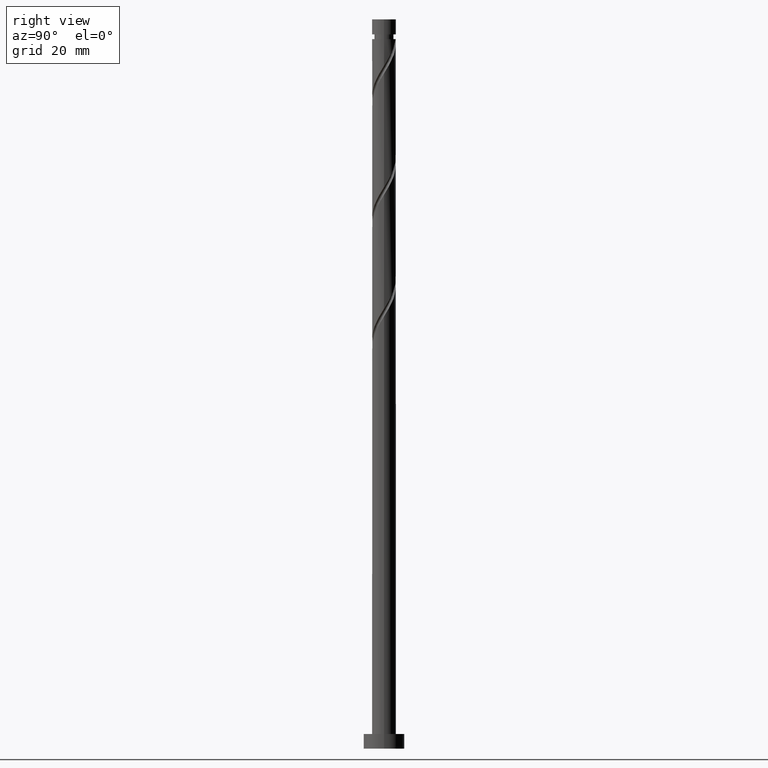
[diagram: clean part render]
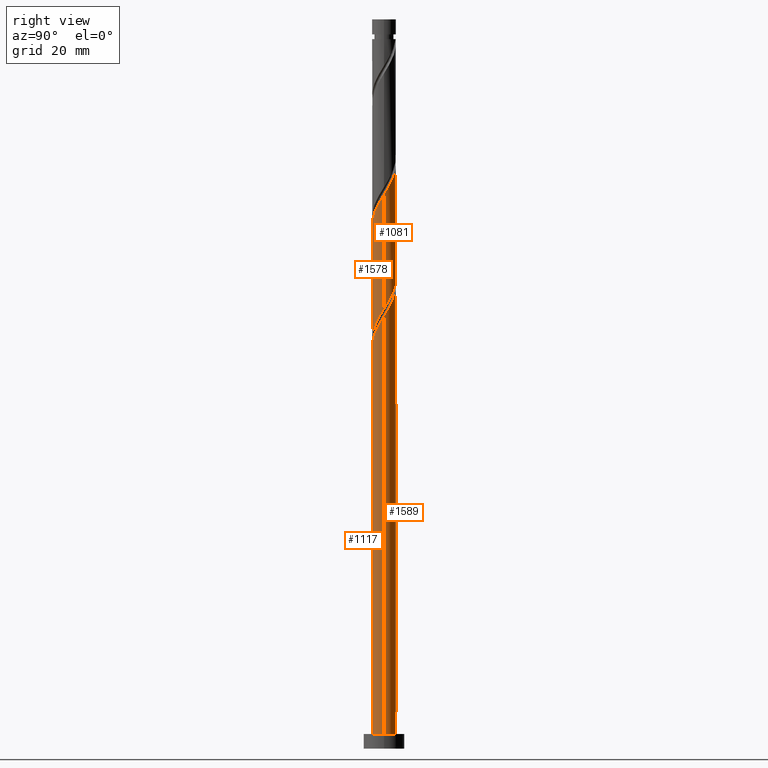
[diagram: same view with one multi-face feature highlighted, each face labeled with its STEP entity id]
A machine part, right view. The highlighted faces form ONE feature: a constant-radius fillet chain: 4 tangent blend faces with common blend radius 4.1 mm. The faces share edges in the B-rep.
Their STEP definitions:
[1] entity #1081 (Cylinder):
#12 = CARTESIAN_POINT ( 'NONE',  ( 3.201945248320214432, 2.608712607072973810, 194.3688165721283099 ) ) ;
#20 = CARTESIAN_POINT ( 'NONE',  ( 3.467576788759973550, 2.187672556406262458, 193.5675345208461522 ) ) ;
#30 = CARTESIAN_POINT ( 'NONE',  ( -2.484596748205738503, 3.299183813967827561, 165.5226627259744134 ) ) ;
#40 = CARTESIAN_POINT ( 'NONE',  ( -3.770227348058453387, 1.611020094211170983, 207.9906114439231146 ) ) ;
#41 = EDGE_LOOP ( 'NONE', ( #899, #1394, #179, #463 ) ) ;
#50 = CARTESIAN_POINT ( 'NONE',  ( 3.733208329199736664, 1.766632505739547110, 192.7662524695641650 ) ) ;
#59 = CYLINDRICAL_SURFACE ( 'NONE', #725, 4.099999999999999645 ) ;
#62 = CARTESIAN_POINT ( 'NONE',  ( 2.589692155012810915, 3.178599462383565388, 156.7085601618718442 ) ) ;
#90 = FACE_OUTER_BOUND ( 'NONE', #41, .T. ) ;
#94 = DIRECTION ( 'NONE',  ( -0.000000000000000000, -0.000000000000000000, -1.000000000000000000 ) ) ;
#163 = CARTESIAN_POINT ( 'NONE',  ( 4.047510911646318377, 0.8218821446204189751, 191.1636883670000771 ) ) ;
#173 = CARTESIAN_POINT ( 'NONE',  ( -4.100000000000004974, -4.217574666386827299E-15, 210.6690998244415312 ) ) ;
#179 = ORIENTED_EDGE ( 'NONE', *, *, #772, .F. ) ;
#183 = CARTESIAN_POINT ( 'NONE',  ( -2.053724632216503920, 3.548551131803961312, 164.7213806746923694 ) ) ;
#191 = CARTESIAN_POINT ( 'NONE',  ( -4.099999999999999645, 0.1630698343807522877, 171.3941059939256490 ) ) ;
#200 = CARTESIAN_POINT ( 'NONE',  ( 0.8158896984274309760, 4.017999999999998906, 159.9136883670000486 ) ) ;
#211 = CARTESIAN_POINT ( 'NONE',  ( -4.099999999999999645, -7.582660836376372050E-15, 171.6582769095586229 ) ) ;
#219 = CARTESIAN_POINT ( 'NONE',  ( 3.275129049406524828, 2.466481240499002414, 155.1059960593077562 ) ) ;
#234 = DIRECTION ( 'NONE',  ( -1.000000000000000000, 0.000000000000000000, 0.000000000000000000 ) ) ;
#238 = CARTESIAN_POINT ( 'NONE',  ( 2.203740304420988227, 3.493045019780353311, 157.5098422131538882 ) ) ;
#246 =( BOUNDED_CURVE ( )  B_SPLINE_CURVE ( 2, ( #1177, #191, #720, #1728, #316, #1573, #856, #1026, #890, #30, #183, #1461, #1312, #1188, #1747, #494, #200, #1222, #954, #238, #62, #1215, #219, #1372, #771, #1335, #912, #1785, #373 ),
 .UNSPECIFIED., .F., .T. ) 
 B_SPLINE_CURVE_WITH_KNOTS ( ( 3, 2, 2, 2, 2, 2, 2, 2, 2, 2, 2, 2, 2, 2, 3 ),
 ( 0.6795271625973833274, 0.6826923076923077094, 0.6923076923076922906, 0.7019230769230768718, 0.7115384615384615641, 0.7211538461538461453, 0.7307692307692307265, 0.7403846153846154188, 0.7500000000000000000, 0.7596153846153845812, 0.7692307692307692735, 0.7788461538461538547, 0.7884615384615384359, 0.7980769230769231282, 0.8045271625973831053 ),
 .UNSPECIFIED. ) 
 CURVE ( )  GEOMETRIC_REPRESENTATION_ITEM ( )  RATIONAL_B_SPLINE_CURVE ( ( 0.9061636035682806289, 0.9069090390690692782, 0.9090909090909258250, 0.9024626128164292549, 0.9090909090909258250, 0.9024626128164292549, 0.9090909090909258250, 0.9024626128164292549, 0.9090909090909258250, 0.9024626128164292549, 0.9090909090909258250, 0.9024626128164292549, 0.9090909090909258250, 0.9024626128164292549, 0.9090909090909258250, 0.9024626128164292549, 0.9090909090909258250, 0.9024626128164292549, 0.9090909090909258250, 0.9024626128164292549, 0.9090909090909258250, 0.9024626128164292549, 0.9090909090909258250, 0.9024626128164292549, 0.9090909090909258250, 0.9024626128164292549, 0.9090909090909258250, 0.9046444828382860237, 0.9061636035682805179 ) ) 
 REPRESENTATION_ITEM ( '' )  );
#289 = CARTESIAN_POINT ( 'NONE',  ( -4.046213737460028881, 0.6619323158675581853, 209.5931755464872595 ) ) ;
#298 = CARTESIAN_POINT ( 'NONE',  ( -1.303763227014474557, 3.918933054726334131, 202.3816370849487498 ) ) ;
#316 = CARTESIAN_POINT ( 'NONE',  ( -3.890359620423019749, 1.294257325179983376, 169.5290729823847187 ) ) ;
#325 = CARTESIAN_POINT ( 'NONE',  ( -4.100000000000010303, 0.3331513980018577792, 210.1293990870932475 ) ) ;
#373 = CARTESIAN_POINT ( 'NONE',  ( 4.099999999999999645, 5.907595720648257465E-15, 150.8249435762253086 ) ) ;
#375 = EDGE_CURVE ( 'NONE', #472, #1430, #1095, .T. ) ;
#455 = CARTESIAN_POINT ( 'NONE',  ( 1.144823255530918127, 3.936925159765629623, 198.3752268285385014 ) ) ;
#463 = ORIENTED_EDGE ( 'NONE', *, *, #1811, .F. ) ;
#472 = VERTEX_POINT ( 'NONE', #1679 ) ;
#476 = CARTESIAN_POINT ( 'NONE',  ( -3.965840602908485835, 1.153231612411109497, 208.7918934952051870 ) ) ;
#494 = CARTESIAN_POINT ( 'NONE',  ( 0.3280161698403873394, 4.117066945273671230, 160.7149704182821779 ) ) ;
#551 = VERTEX_POINT ( 'NONE', #1114 ) ;
#570 = CARTESIAN_POINT ( 'NONE',  ( 2.843270998262978466, 2.953948210520402906, 195.1700986234102686 ) ) ;
#589 = CARTESIAN_POINT ( 'NONE',  ( -3.574614093208420051, 2.068808576011232248, 207.1893293926411275 ) ) ;
#606 =( BOUNDED_CURVE ( )  B_SPLINE_CURVE ( 2, ( #1199, #1049, #1447, #163, #1288, #50, #20, #12, #570, #1739, #901, #1302, #455, #1019, #1154, #1757, #751, #298, #1717, #1037, #1613, #1602, #1592, #589, #40, #476, #289, #325, #173 ),
 .UNSPECIFIED., .F., .T. ) 
 B_SPLINE_CURVE_WITH_KNOTS ( ( 3, 2, 2, 2, 2, 2, 2, 2, 2, 2, 2, 2, 2, 2, 3 ),
 ( 0.4295271625973833829, 0.4326923076923077094, 0.4423076923076922906, 0.4519230769230768718, 0.4615384615384615641, 0.4711538461538461453, 0.4807692307692307265, 0.4903846153846154188, 0.5000000000000000000, 0.5096153846153845812, 0.5192307692307691624, 0.5288461538461538547, 0.5384615384615384359, 0.5480769230769231282, 0.5545271625973838825 ),
 .UNSPECIFIED. ) 
 CURVE ( )  GEOMETRIC_REPRESENTATION_ITEM ( )  RATIONAL_B_SPLINE_CURVE ( ( 0.9061636035682867352, 0.9069090390690753845, 0.9090909090909319312, 0.9024626128164353611, 0.9090909090909319312, 0.9024626128164353611, 0.9090909090909319312, 0.9024626128164353611, 0.9090909090909319312, 0.9024626128164353611, 0.9090909090909319312, 0.9024626128164353611, 0.9090909090909319312, 0.9024626128164353611, 0.9090909090909319312, 0.9024626128164353611, 0.9090909090909319312, 0.9024626128164353611, 0.9090909090909319312, 0.9024626128164353611, 0.9090909090909319312, 0.9024626128164353611, 0.9090909090909319312, 0.9024626128164353611, 0.9090909090909319312, 0.9024626128164353611, 0.9090909090909319312, 0.9046444828382915748, 0.9061636035682869572 ) ) 
 REPRESENTATION_ITEM ( '' )  );
#667 = EDGE_CURVE ( 'NONE', #472, #551, #606, .T. ) ;
#720 = CARTESIAN_POINT ( 'NONE',  ( -4.087048891828938935, 0.3256245626482077160, 171.1316370849487782 ) ) ;
#725 = AXIS2_PLACEMENT_3D ( 'NONE', #778, #909, #234 ) ;
#742 = CARTESIAN_POINT ( 'NONE',  ( -4.099999999999999645, 0.000000000000000000, 250.0000000000000000 ) ) ;
#751 = CARTESIAN_POINT ( 'NONE',  ( -0.8158896984274295328, 4.018000000000004235, 201.5803550336667342 ) ) ;
#771 = CARTESIAN_POINT ( 'NONE',  ( 3.770227348058447170, 1.611020094211166542, 153.5034319567436398 ) ) ;
#772 = EDGE_CURVE ( 'NONE', #1815, #1430, #246, .T. ) ;
#778 = CARTESIAN_POINT ( 'NONE',  ( 0.000000000000000000, 0.000000000000000000, 250.0000000000000000 ) ) ;
#856 = CARTESIAN_POINT ( 'NONE',  ( -3.467576788759967776, 2.187672556406260682, 167.9265088798205738 ) ) ;
#890 = CARTESIAN_POINT ( 'NONE',  ( -2.843270998262973581, 2.953948210520399797, 166.3239447772565143 ) ) ;
#899 = ORIENTED_EDGE ( 'NONE', *, *, #667, .F. ) ;
#901 = CARTESIAN_POINT ( 'NONE',  ( 2.053724632216509693, 3.548551131803965308, 196.7726627259744703 ) ) ;
#909 = DIRECTION ( 'NONE',  ( -0.000000000000000000, -0.000000000000000000, -1.000000000000000000 ) ) ;
#912 = CARTESIAN_POINT ( 'NONE',  ( 4.046213737460023552, 0.6619323158675556318, 151.9008678541795518 ) ) ;
#922 = VECTOR ( 'NONE', #1314, 1000.000000000000000 ) ;
#954 = CARTESIAN_POINT ( 'NONE',  ( 1.753751765717732392, 3.705989037253338836, 158.3111242644359606 ) ) ;
#1019 = CARTESIAN_POINT ( 'NONE',  ( 0.6667939948345591450, 4.075931869891159742, 199.1765088798206023 ) ) ;
#1026 = CARTESIAN_POINT ( 'NONE',  ( -3.201945248320208659, 2.608712607072973810, 167.1252268285385583 ) ) ;
#1037 = CARTESIAN_POINT ( 'NONE',  ( -2.203740304420988672, 3.493045019780358640, 203.9842011875128662 ) ) ;
#1049 = CARTESIAN_POINT ( 'NONE',  ( 4.100000000000005862, 0.1630698343807529260, 190.0999374067411054 ) ) ;
#1081 = ADVANCED_FACE ( 'NONE', ( #90 ), #59, .T. ) ;
#1095 = LINE ( 'NONE', #1643, #1806 ) ;
#1114 = CARTESIAN_POINT ( 'NONE',  ( -4.100000000000004974, -4.217574666386827299E-15, 210.6690998244415312 ) ) ;
#1154 = CARTESIAN_POINT ( 'NONE',  ( 0.1693889124970889282, 4.096499407582417263, 199.9777909311026178 ) ) ;
#1177 = CARTESIAN_POINT ( 'NONE',  ( -4.099999999999999645, -7.582660836376372050E-15, 171.6582769095586229 ) ) ;
#1188 = CARTESIAN_POINT ( 'NONE',  ( -0.6667939948345560364, 4.075931869891155301, 162.3175345208462375 ) ) ;
#1199 = CARTESIAN_POINT ( 'NONE',  ( 4.100000000000005862, 1.854536378127542221E-15, 189.8357664911081883 ) ) ;
#1215 = CARTESIAN_POINT ( 'NONE',  ( 2.975644005604635822, 2.864153904986782795, 155.9072781105898002 ) ) ;
#1222 = CARTESIAN_POINT ( 'NONE',  ( 1.303763227014475223, 3.918933054726328802, 159.1124063157180615 ) ) ;
#1263 = CARTESIAN_POINT ( 'NONE',  ( 4.099999999999999645, 5.907595720648257465E-15, 150.8249435762253086 ) ) ;
#1288 = CARTESIAN_POINT ( 'NONE',  ( 3.890359620423026854, 1.294257325179981155, 191.9649704182820926 ) ) ;
#1302 = CARTESIAN_POINT ( 'NONE',  ( 1.622852516227274000, 3.797918449640103500, 197.5739447772564574 ) ) ;
#1312 = CARTESIAN_POINT ( 'NONE',  ( -1.144823255530913242, 3.936925159765625182, 163.1188165721282530 ) ) ;
#1314 = DIRECTION ( 'NONE',  ( -0.000000000000000000, -0.000000000000000000, -1.000000000000000000 ) ) ;
#1335 = CARTESIAN_POINT ( 'NONE',  ( 3.965840602908481838, 1.153231612411104834, 152.7021499054616243 ) ) ;
#1372 = CARTESIAN_POINT ( 'NONE',  ( 3.574614093208416943, 2.068808576011225142, 154.3047140080257407 ) ) ;
#1394 = ORIENTED_EDGE ( 'NONE', *, *, #375, .T. ) ;
#1430 = VERTEX_POINT ( 'NONE', #1263 ) ;
#1447 = CARTESIAN_POINT ( 'NONE',  ( 4.087048891828945152, 0.3256245626482048294, 190.3624063157179762 ) ) ;
#1461 = CARTESIAN_POINT ( 'NONE',  ( -1.622852516227271114, 3.797918449640097283, 163.9200986234102970 ) ) ;
#1573 = CARTESIAN_POINT ( 'NONE',  ( -3.733208329199730002, 1.766632505739547554, 168.7277909311026747 ) ) ;
#1592 = CARTESIAN_POINT ( 'NONE',  ( -3.275129049406527937, 2.466481240499010408, 206.3880473413590266 ) ) ;
#1602 = CARTESIAN_POINT ( 'NONE',  ( -2.975644005604637599, 2.864153904986787680, 205.5867652900769542 ) ) ;
#1604 = LINE ( 'NONE', #742, #922 ) ;
#1613 = CARTESIAN_POINT ( 'NONE',  ( -2.589692155012813135, 3.178599462383571606, 204.7854832387949386 ) ) ;
#1643 = CARTESIAN_POINT ( 'NONE',  ( 4.099999999999999645, 5.021051876504147385E-16, 250.0000000000000000 ) ) ;
#1679 = CARTESIAN_POINT ( 'NONE',  ( 4.100000000000005862, 1.854536378127542221E-15, 189.8357664911081883 ) ) ;
#1717 = CARTESIAN_POINT ( 'NONE',  ( -1.753751765717731281, 3.705989037253346385, 203.1829191362307938 ) ) ;
#1728 = CARTESIAN_POINT ( 'NONE',  ( -4.047510911646313936, 0.8218821446204194192, 170.3303550336668195 ) ) ;
#1739 = CARTESIAN_POINT ( 'NONE',  ( 2.484596748205746053, 3.299183813967828449, 195.9713806746923979 ) ) ;
#1747 = CARTESIAN_POINT ( 'NONE',  ( -0.1693889124970843485, 4.096499407582411045, 161.5162524695641366 ) ) ;
#1757 = CARTESIAN_POINT ( 'NONE',  ( -0.3280161698403849524, 4.117066945273676559, 200.7790729823846902 ) ) ;
#1785 = CARTESIAN_POINT ( 'NONE',  ( 4.099999999999997868, 0.3331513980018949161, 151.3646443135735922 ) ) ;
#1806 = VECTOR ( 'NONE', #94, 1000.000000000000000 ) ;
#1811 = EDGE_CURVE ( 'NONE', #551, #1815, #1604, .T. ) ;
#1815 = VERTEX_POINT ( 'NONE', #211 ) ;
[2] entity #1578 (Cylinder):
#17 = CARTESIAN_POINT ( 'NONE',  ( -2.203740304420987339, -3.493045019780353311, 136.6765088798206591 ) ) ;
#27 = CARTESIAN_POINT ( 'NONE',  ( -1.753751765717731059, -3.705989037253339280, 137.4777909311026178 ) ) ;
#94 = DIRECTION ( 'NONE',  ( -0.000000000000000000, -0.000000000000000000, -1.000000000000000000 ) ) ;
#102 = CARTESIAN_POINT ( 'NONE',  ( -4.099999999999999645, -7.582660836376372050E-15, 129.9916102428919373 ) ) ;
#110 = CARTESIAN_POINT ( 'NONE',  ( -0.6667939948345587009, -4.075931869891159742, 178.3431755464872595 ) ) ;
#130 = FACE_OUTER_BOUND ( 'NONE', #717, .T. ) ;
#137 = CARTESIAN_POINT ( 'NONE',  ( 0.8158896984274300879, -4.018000000000004235, 180.7470217003333914 ) ) ;
#143 = VERTEX_POINT ( 'NONE', #102 ) ;
#161 = CARTESIAN_POINT ( 'NONE',  ( 4.087048891828938046, -0.3256245626482099920, 150.2983037516154070 ) ) ;
#168 = CARTESIAN_POINT ( 'NONE',  ( 2.053724632216503476, -3.548551131803962200, 143.8880473413589982 ) ) ;
#180 = CARTESIAN_POINT ( 'NONE',  ( -3.965840602908480950, -1.153231612411107054, 131.8688165721283099 ) ) ;
#188 = CARTESIAN_POINT ( 'NONE',  ( 0.6667939948345544821, -4.075931869891155301, 141.4842011875128946 ) ) ;
#247 = CARTESIAN_POINT ( 'NONE',  ( 1.303763227014473003, -3.918933054726334131, 181.5483037516154070 ) ) ;
#265 = CARTESIAN_POINT ( 'NONE',  ( 3.770227348058453387, -1.611020094211170983, 187.1572781105898002 ) ) ;
#273 = CARTESIAN_POINT ( 'NONE',  ( -4.087048891828945152, -0.3256245626482061062, 169.5290729823846618 ) ) ;
#280 = DIRECTION ( 'NONE',  ( -1.000000000000000000, 0.000000000000000000, 0.000000000000000000 ) ) ;
#286 = CARTESIAN_POINT ( 'NONE',  ( 3.201945248320207327, -2.608712607072974698, 146.2918934952051870 ) ) ;
#295 = CARTESIAN_POINT ( 'NONE',  ( 3.733208329199730002, -1.766632505739546888, 147.8944575977692750 ) ) ;
#322 = ORIENTED_EDGE ( 'NONE', *, *, #375, .F. ) ;
#323 = CARTESIAN_POINT ( 'NONE',  ( -4.046213737460023552, -0.6619323158675554097, 131.0675345208462090 ) ) ;
#375 = EDGE_CURVE ( 'NONE', #472, #1430, #1095, .T. ) ;
#394 = CARTESIAN_POINT ( 'NONE',  ( -2.053724632216508805, -3.548551131803965308, 175.9393293926410138 ) ) ;
#404 = VECTOR ( 'NONE', #1769, 1000.000000000000000 ) ;
#409 = CARTESIAN_POINT ( 'NONE',  ( -4.047510911646318377, -0.8218821446204194192, 170.3303550336667342 ) ) ;
#418 = CARTESIAN_POINT ( 'NONE',  ( 2.203740304420987339, -3.493045019780359972, 183.1508678541796087 ) ) ;
#425 = CARTESIAN_POINT ( 'NONE',  ( -3.890359620423026410, -1.294257325179983154, 171.1316370849488351 ) ) ;
#436 = DIRECTION ( 'NONE',  ( -0.000000000000000000, -0.000000000000000000, -1.000000000000000000 ) ) ;
#442 = CARTESIAN_POINT ( 'NONE',  ( -3.275129049406524828, -2.466481240499003746, 134.2726627259743850 ) ) ;
#452 =( BOUNDED_CURVE ( )  B_SPLINE_CURVE ( 2, ( #555, #1249, #273, #409, #425, #1256, #691, #671, #540, #1281, #394, #1709, #1812, #110, #976, #1137, #137, #247, #1123, #418, #811, #847, #830, #1130, #265, #1000, #532, #990, #838 ),
 .UNSPECIFIED., .F., .T. ) 
 B_SPLINE_CURVE_WITH_KNOTS ( ( 3, 2, 2, 2, 2, 2, 2, 2, 2, 2, 2, 2, 2, 2, 3 ),
 ( 0.3045271625973835494, 0.3076923076923077094, 0.3173076923076922906, 0.3269230769230768718, 0.3365384615384615641, 0.3461538461538461453, 0.3557692307692307265, 0.3653846153846154188, 0.3750000000000000000, 0.3846153846153845812, 0.3942307692307692735, 0.4038461538461538547, 0.4134615384615384359, 0.4230769230769231282, 0.4295271625973833829 ),
 .UNSPECIFIED. ) 
 CURVE ( )  GEOMETRIC_REPRESENTATION_ITEM ( )  RATIONAL_B_SPLINE_CURVE ( ( 0.9061636035682867352, 0.9069090390690754955, 0.9090909090909319312, 0.9024626128164353611, 0.9090909090909319312, 0.9024626128164353611, 0.9090909090909319312, 0.9024626128164353611, 0.9090909090909319312, 0.9024626128164353611, 0.9090909090909319312, 0.9024626128164353611, 0.9090909090909319312, 0.9024626128164353611, 0.9090909090909319312, 0.9024626128164353611, 0.9090909090909319312, 0.9024626128164353611, 0.9090909090909319312, 0.9024626128164353611, 0.9090909090909319312, 0.9024626128164353611, 0.9090909090909319312, 0.9024626128164353611, 0.9090909090909319312, 0.9024626128164353611, 0.9090909090909319312, 0.9046444828382917969, 0.9061636035682867352 ) ) 
 REPRESENTATION_ITEM ( '' )  );
#472 = VERTEX_POINT ( 'NONE', #1679 ) ;
#532 = CARTESIAN_POINT ( 'NONE',  ( 4.046213737460028881, -0.6619323158675585184, 188.7598422131539166 ) ) ;
#540 = CARTESIAN_POINT ( 'NONE',  ( -2.843270998262978466, -2.953948210520402906, 174.3367652900769542 ) ) ;
#555 = CARTESIAN_POINT ( 'NONE',  ( -4.100000000000004974, 9.123122505304842841E-15, 169.0024331577748455 ) ) ;
#560 = CARTESIAN_POINT ( 'NONE',  ( 4.099999999999999645, 5.907595720648257465E-15, 150.8249435762253086 ) ) ;
#568 = CARTESIAN_POINT ( 'NONE',  ( 1.144823255530912576, -3.936925159765625182, 142.2854832387949102 ) ) ;
#571 = CYLINDRICAL_SURFACE ( 'NONE', #1544, 4.099999999999999645 ) ;
#577 = CARTESIAN_POINT ( 'NONE',  ( -2.589692155012810471, -3.178599462383566721, 135.8752268285385298 ) ) ;
#582 = EDGE_CURVE ( 'NONE', #695, #472, #452, .T. ) ;
#597 = CARTESIAN_POINT ( 'NONE',  ( -1.303763227014474779, -3.918933054726328802, 138.2790729823847187 ) ) ;
#671 = CARTESIAN_POINT ( 'NONE',  ( -3.201945248320212656, -2.608712607072976031, 173.5354832387949102 ) ) ;
#691 = CARTESIAN_POINT ( 'NONE',  ( -3.467576788759973994, -2.187672556406262014, 172.7342011875128662 ) ) ;
#695 = VERTEX_POINT ( 'NONE', #740 ) ;
#717 = EDGE_LOOP ( 'NONE', ( #322, #980, #1172, #1610 ) ) ;
#728 = CARTESIAN_POINT ( 'NONE',  ( -0.8158896984274305320, -4.017999999999998906, 139.0803550336667058 ) ) ;
#737 = CARTESIAN_POINT ( 'NONE',  ( -4.100000000000000533, -0.3331513980018844800, 130.5313109802402778 ) ) ;
#740 = CARTESIAN_POINT ( 'NONE',  ( -4.100000000000004974, 9.123122505304842841E-15, 169.0024331577748455 ) ) ;
#748 = CARTESIAN_POINT ( 'NONE',  ( -4.099999999999999645, -7.582660836376372050E-15, 129.9916102428919373 ) ) ;
#811 = CARTESIAN_POINT ( 'NONE',  ( 2.589692155012813135, -3.178599462383571606, 183.9521499054615958 ) ) ;
#830 = CARTESIAN_POINT ( 'NONE',  ( 3.275129049406527493, -2.466481240499011296, 185.5547140080257122 ) ) ;
#838 = CARTESIAN_POINT ( 'NONE',  ( 4.100000000000005862, 1.854536378127542221E-15, 189.8357664911081883 ) ) ;
#847 = CARTESIAN_POINT ( 'NONE',  ( 2.975644005604637599, -2.864153904986787680, 184.7534319567436683 ) ) ;
#854 = CARTESIAN_POINT ( 'NONE',  ( 3.890359620423019749, -1.294257325179984930, 148.6957396490513474 ) ) ;
#871 = CARTESIAN_POINT ( 'NONE',  ( -2.975644005604635378, -2.864153904986782795, 135.0739447772565143 ) ) ;
#892 = CARTESIAN_POINT ( 'NONE',  ( -4.099999999999999645, 0.000000000000000000, 250.0000000000000000 ) ) ;
#914 = LINE ( 'NONE', #892, #404 ) ;
#970 = EDGE_CURVE ( 'NONE', #1430, #143, #1570, .T. ) ;
#976 = CARTESIAN_POINT ( 'NONE',  ( -0.1693889124970866800, -4.096499407582417263, 179.1444575977692466 ) ) ;
#980 = ORIENTED_EDGE ( 'NONE', *, *, #582, .F. ) ;
#990 = CARTESIAN_POINT ( 'NONE',  ( 4.100000000000007638, -0.3331513980018833143, 189.2960657537599047 ) ) ;
#1000 = CARTESIAN_POINT ( 'NONE',  ( 3.965840602908485391, -1.153231612411111495, 187.9585601618718727 ) ) ;
#1024 = CARTESIAN_POINT ( 'NONE',  ( 4.047510911646313936, -0.8218821446204198633, 149.4970217003333914 ) ) ;
#1034 = CARTESIAN_POINT ( 'NONE',  ( 2.843270998262973581, -2.953948210520399797, 145.4906114439231146 ) ) ;
#1095 = LINE ( 'NONE', #1643, #1806 ) ;
#1123 = CARTESIAN_POINT ( 'NONE',  ( 1.753751765717729949, -3.705989037253346829, 182.3495858028975078 ) ) ;
#1130 = CARTESIAN_POINT ( 'NONE',  ( 3.574614093208418719, -2.068808576011233580, 186.3559960593077847 ) ) ;
#1137 = CARTESIAN_POINT ( 'NONE',  ( 0.3280161698403854520, -4.117066945273676559, 179.9457396490513759 ) ) ;
#1152 = CARTESIAN_POINT ( 'NONE',  ( -3.574614093208416055, -2.068808576011227363, 133.4713806746923979 ) ) ;
#1157 = CARTESIAN_POINT ( 'NONE',  ( 0.000000000000000000, 0.000000000000000000, 250.0000000000000000 ) ) ;
#1172 = ORIENTED_EDGE ( 'NONE', *, *, #1720, .T. ) ;
#1249 = CARTESIAN_POINT ( 'NONE',  ( -4.100000000000005862, -0.1630698343807622519, 169.2666040734078479 ) ) ;
#1256 = CARTESIAN_POINT ( 'NONE',  ( -3.733208329199735331, -1.766632505739548664, 171.9329191362308222 ) ) ;
#1263 = CARTESIAN_POINT ( 'NONE',  ( 4.099999999999999645, 5.907595720648257465E-15, 150.8249435762253086 ) ) ;
#1281 = CARTESIAN_POINT ( 'NONE',  ( -2.484596748205744721, -3.299183813967830226, 175.1380473413590266 ) ) ;
#1292 = CARTESIAN_POINT ( 'NONE',  ( 3.467576788759967776, -2.187672556406260682, 147.0931755464872310 ) ) ;
#1299 = CARTESIAN_POINT ( 'NONE',  ( -3.770227348058447170, -1.611020094211167875, 132.6700986234102970 ) ) ;
#1310 = CARTESIAN_POINT ( 'NONE',  ( -0.3280161698403883941, -4.117066945273671230, 139.8816370849487782 ) ) ;
#1424 = CARTESIAN_POINT ( 'NONE',  ( 0.1693889124970829885, -4.096499407582411045, 140.6829191362308222 ) ) ;
#1430 = VERTEX_POINT ( 'NONE', #1263 ) ;
#1443 = CARTESIAN_POINT ( 'NONE',  ( 2.484596748205738059, -3.299183813967828005, 144.6893293926410990 ) ) ;
#1458 = CARTESIAN_POINT ( 'NONE',  ( 1.622852516227270225, -3.797918449640097727, 143.0867652900770111 ) ) ;
#1544 = AXIS2_PLACEMENT_3D ( 'NONE', #1157, #436, #280 ) ;
#1569 = CARTESIAN_POINT ( 'NONE',  ( 4.100000000000000533, -0.1630698343807429063, 150.5607726605923347 ) ) ;
#1570 =( BOUNDED_CURVE ( )  B_SPLINE_CURVE ( 2, ( #560, #1569, #161, #1024, #854, #295, #1292, #286, #1034, #1443, #168, #1458, #568, #188, #1424, #1310, #728, #597, #27, #17, #577, #871, #442, #1152, #1299, #180, #323, #737, #748 ),
 .UNSPECIFIED., .F., .T. ) 
 B_SPLINE_CURVE_WITH_KNOTS ( ( 3, 2, 2, 2, 2, 2, 2, 2, 2, 2, 2, 2, 2, 2, 3 ),
 ( 0.8045271625973831053, 0.8076923076923077094, 0.8173076923076922906, 0.8269230769230768718, 0.8365384615384615641, 0.8461538461538461453, 0.8557692307692307265, 0.8653846153846154188, 0.8750000000000000000, 0.8846153846153845812, 0.8942307692307692735, 0.9038461538461538547, 0.9134615384615384359, 0.9230769230769231282, 0.9295271625973833274 ),
 .UNSPECIFIED. ) 
 CURVE ( )  GEOMETRIC_REPRESENTATION_ITEM ( )  RATIONAL_B_SPLINE_CURVE ( ( 0.9061636035682805179, 0.9069090390690690562, 0.9090909090909258250, 0.9024626128164292549, 0.9090909090909258250, 0.9024626128164292549, 0.9090909090909258250, 0.9024626128164292549, 0.9090909090909258250, 0.9024626128164292549, 0.9090909090909258250, 0.9024626128164292549, 0.9090909090909258250, 0.9024626128164292549, 0.9090909090909258250, 0.9024626128164292549, 0.9090909090909258250, 0.9024626128164292549, 0.9090909090909258250, 0.9024626128164292549, 0.9090909090909258250, 0.9024626128164292549, 0.9090909090909258250, 0.9024626128164292549, 0.9090909090909258250, 0.9024626128164292549, 0.9090909090909258250, 0.9046444828382858017, 0.9061636035682806289 ) ) 
 REPRESENTATION_ITEM ( '' )  );
#1578 = ADVANCED_FACE ( 'NONE', ( #130 ), #571, .T. ) ;
#1610 = ORIENTED_EDGE ( 'NONE', *, *, #970, .F. ) ;
#1643 = CARTESIAN_POINT ( 'NONE',  ( 4.099999999999999645, 5.021051876504147385E-16, 250.0000000000000000 ) ) ;
#1679 = CARTESIAN_POINT ( 'NONE',  ( 4.100000000000005862, 1.854536378127542221E-15, 189.8357664911081883 ) ) ;
#1709 = CARTESIAN_POINT ( 'NONE',  ( -1.622852516227273778, -3.797918449640103500, 176.7406114439231430 ) ) ;
#1720 = EDGE_CURVE ( 'NONE', #695, #143, #914, .T. ) ;
#1769 = DIRECTION ( 'NONE',  ( -0.000000000000000000, -0.000000000000000000, -1.000000000000000000 ) ) ;
#1806 = VECTOR ( 'NONE', #94, 1000.000000000000000 ) ;
#1812 = CARTESIAN_POINT ( 'NONE',  ( -1.144823255530915906, -3.936925159765630511, 177.5418934952051870 ) ) ;
[3] entity #1589 (Cylinder):
#5 = CARTESIAN_POINT ( 'NONE',  ( -3.965840602908485835, 1.153231612411109497, 125.4585601618718727 ) ) ;
#78 = ORIENTED_EDGE ( 'NONE', *, *, #872, .T. ) ;
#84 =( BOUNDED_CURVE ( )  B_SPLINE_CURVE ( 2, ( #927, #1354, #1494, #212, #86, #1694, #1685, #679, #1008, #1701, #279, #701, #1827, #1837, #257, #1271, #546 ),
 .UNSPECIFIED., .F., .T. ) 
 B_SPLINE_CURVE_WITH_KNOTS ( ( 3, 2, 2, 2, 2, 2, 2, 2, 3 ),
 ( 0.9295271625973833274, 0.9326923076923077094, 0.9423076923076922906, 0.9519230769230768718, 0.9615384615384615641, 0.9711538461538461453, 0.9807692307692307265, 0.9903846153846154188, 1.000000000000000000 ),
 .UNSPECIFIED. ) 
 CURVE ( )  GEOMETRIC_REPRESENTATION_ITEM ( )  RATIONAL_B_SPLINE_CURVE ( ( 0.9061636035682806289, 0.9069090390690692782, 0.9090909090909258250, 0.9024626128164292549, 0.9090909090909258250, 0.9024626128164292549, 0.9090909090909258250, 0.9024626128164292549, 0.9090909090909258250, 0.9024626128164292549, 0.9090909090909258250, 0.9024626128164292549, 0.9090909090909258250, 0.9024626128164292549, 0.9090909090909258250, 0.9024626128164292549, 0.9090909090909258250 ) ) 
 REPRESENTATION_ITEM ( '' )  );
#86 = CARTESIAN_POINT ( 'NONE',  ( -3.890359620423019749, 1.294257325179983376, 127.8624063157180188 ) ) ;
#102 = CARTESIAN_POINT ( 'NONE',  ( -4.099999999999999645, -7.582660836376372050E-15, 129.9916102428919373 ) ) ;
#108 = CARTESIAN_POINT ( 'NONE',  ( 0.000000000000000000, 0.000000000000000000, 118.2470217003334909 ) ) ;
#118 = CARTESIAN_POINT ( 'NONE',  ( -3.574614093208420051, 2.068808576011232248, 165.5226627259743850 ) ) ;
#124 = VERTEX_POINT ( 'NONE', #1501 ) ;
#138 = CARTESIAN_POINT ( 'NONE',  ( -3.770227348058453387, 1.611020094211170983, 124.6572781105898002 ) ) ;
#143 = VERTEX_POINT ( 'NONE', #102 ) ;
#149 = CARTESIAN_POINT ( 'NONE',  ( -4.046213737460028881, 0.6619323158675581853, 126.2598422131538882 ) ) ;
#157 = CARTESIAN_POINT ( 'NONE',  ( -1.753751765717731281, 3.705989037253346385, 119.8495858028974936 ) ) ;
#210 = CARTESIAN_POINT ( 'NONE',  ( 4.100000000000005862, 1.854536378127542221E-15, 148.1690998244415312 ) ) ;
#212 = CARTESIAN_POINT ( 'NONE',  ( -4.047510911646313936, 0.8218821446204194192, 128.6636883670000771 ) ) ;
#231 = CIRCLE ( 'NONE', #260, 4.099999999999999645 ) ;
#244 = CARTESIAN_POINT ( 'NONE',  ( -3.275129049406527937, 2.466481240499010408, 164.7213806746923979 ) ) ;
#257 = CARTESIAN_POINT ( 'NONE',  ( -0.1693889124970843485, 4.096499407582411045, 119.8495858028975078 ) ) ;
#260 = AXIS2_PLACEMENT_3D ( 'NONE', #108, #837, #1120 ) ;
#261 = VERTEX_POINT ( 'NONE', #1239 ) ;
#271 = CARTESIAN_POINT ( 'NONE',  ( -1.753751765717731281, 3.705989037253346385, 161.5162524695641082 ) ) ;
#279 = CARTESIAN_POINT ( 'NONE',  ( -2.053724632216503920, 3.548551131803961312, 123.0547140080256838 ) ) ;
#299 = FACE_OUTER_BOUND ( 'NONE', #1164, .T. ) ;
#307 = CARTESIAN_POINT ( 'NONE',  ( 4.099999999999999645, 5.021051876504147385E-16, 5.000000000000000000 ) ) ;
#336 = CARTESIAN_POINT ( 'NONE',  ( -4.100000000000005862, 2.057937142180240074E-14, 127.3357664911081741 ) ) ;
#346 = VECTOR ( 'NONE', #1020, 1000.000000000000000 ) ;
#358 = CARTESIAN_POINT ( 'NONE',  ( 4.047510911646318377, 0.8218821446204189751, 149.4970217003334199 ) ) ;
#392 = CARTESIAN_POINT ( 'NONE',  ( 2.053724632216509693, 3.548551131803965308, 155.1059960593077562 ) ) ;
#398 = CARTESIAN_POINT ( 'NONE',  ( -2.589692155012813135, 3.178599462383571606, 163.1188165721282815 ) ) ;
#404 = VECTOR ( 'NONE', #1769, 1000.000000000000000 ) ;
#431 = ORIENTED_EDGE ( 'NONE', *, *, #1446, .T. ) ;
#439 = EDGE_CURVE ( 'NONE', #143, #124, #84, .T. ) ;
#445 = CARTESIAN_POINT ( 'NONE',  ( -2.589692155012813135, 3.178599462383571606, 121.4521499054616100 ) ) ;
#501 = LINE ( 'NONE', #1789, #1663 ) ;
#538 = CARTESIAN_POINT ( 'NONE',  ( -4.100000000000007638, 0.3331513980018748766, 168.4627324204265619 ) ) ;
#546 = CARTESIAN_POINT ( 'NONE',  ( 0.8158896984274310871, 4.017999999999999794, 118.2470217003333772 ) ) ;
#547 = LINE ( 'NONE', #1427, #346 ) ;
#554 = CARTESIAN_POINT ( 'NONE',  ( 2.484596748205746053, 3.299183813967828449, 154.3047140080256838 ) ) ;
#564 = CARTESIAN_POINT ( 'NONE',  ( 0.000000000000000000, 0.000000000000000000, 250.0000000000000000 ) ) ;
#618 = ORIENTED_EDGE ( 'NONE', *, *, #1390, .T. ) ;
#679 = CARTESIAN_POINT ( 'NONE',  ( -3.201945248320208659, 2.608712607072973810, 125.4585601618719011 ) ) ;
#683 = CARTESIAN_POINT ( 'NONE',  ( 0.6667939948345591450, 4.075931869891159742, 157.5098422131538882 ) ) ;
#685 = DIRECTION ( 'NONE',  ( 0.000000000000000000, 0.000000000000000000, 1.000000000000000000 ) ) ;
#692 = CARTESIAN_POINT ( 'NONE',  ( -4.100000000000004086, 0.3331513980018933618, 126.7960657537598479 ) ) ;
#695 = VERTEX_POINT ( 'NONE', #740 ) ;
#701 = CARTESIAN_POINT ( 'NONE',  ( -1.622852516227271114, 3.797918449640097283, 122.2534319567436540 ) ) ;
#707 = ORIENTED_EDGE ( 'NONE', *, *, #1432, .F. ) ;
#712 = CARTESIAN_POINT ( 'NONE',  ( -3.574614093208420051, 2.068808576011232248, 123.8559960593077705 ) ) ;
#740 = CARTESIAN_POINT ( 'NONE',  ( -4.100000000000004974, 9.123122505304842841E-15, 169.0024331577748455 ) ) ;
#762 = AXIS2_PLACEMENT_3D ( 'NONE', #1593, #685, #1436 ) ;
#781 = CARTESIAN_POINT ( 'NONE',  ( 3.733208329199736664, 1.766632505739547110, 151.0995858028974794 ) ) ;
#809 = CARTESIAN_POINT ( 'NONE',  ( -4.100000000000004974, 9.123122505304842841E-15, 169.0024331577748455 ) ) ;
#819 = CARTESIAN_POINT ( 'NONE',  ( -4.046213737460028881, 0.6619323158675581853, 167.9265088798206023 ) ) ;
#837 = DIRECTION ( 'NONE',  ( 0.000000000000000000, -2.538619720941668896E-14, -1.000000000000000000 ) ) ;
#848 = CYLINDRICAL_SURFACE ( 'NONE', #1417, 4.099999999999999645 ) ;
#857 = CARTESIAN_POINT ( 'NONE',  ( -0.8158896984274296438, 4.018000000000004235, 118.2470217003333772 ) ) ;
#860 = EDGE_CURVE ( 'NONE', #261, #695, #1464, .T. ) ;
#872 = EDGE_CURVE ( 'NONE', #1342, #124, #231, .T. ) ;
#874 =( BOUNDED_CURVE ( )  B_SPLINE_CURVE ( 2, ( #857, #1408, #157, #1702, #445, #1718, #1710, #712, #138, #5, #149, #692, #1001 ),
 .UNSPECIFIED., .F., .F. ) 
 B_SPLINE_CURVE_WITH_KNOTS ( ( 3, 2, 2, 2, 2, 2, 3 ),
 ( 0.000000000000000000, 0.009615384615384581224, 0.01923076923076927347, 0.02884615384615385469, 0.03846153846153843592, 0.04807692307692312816, 0.05452716259738318860 ),
 .UNSPECIFIED. ) 
 CURVE ( )  GEOMETRIC_REPRESENTATION_ITEM ( )  RATIONAL_B_SPLINE_CURVE ( ( 0.9090909090909319312, 0.9024626128164353611, 0.9090909090909319312, 0.9024626128164353611, 0.9090909090909319312, 0.9024626128164353611, 0.9090909090909319312, 0.9024626128164353611, 0.9090909090909319312, 0.9024626128164353611, 0.9090909090909319312, 0.9046444828382920189, 0.9061636035682866241 ) ) 
 REPRESENTATION_ITEM ( '' )  );
#892 = CARTESIAN_POINT ( 'NONE',  ( -4.099999999999999645, 0.000000000000000000, 250.0000000000000000 ) ) ;
#914 = LINE ( 'NONE', #892, #404 ) ;
#921 = DIRECTION ( 'NONE',  ( -0.000000000000000000, -0.000000000000000000, -1.000000000000000000 ) ) ;
#926 = CARTESIAN_POINT ( 'NONE',  ( -4.099999999999999645, 0.000000000000000000, 5.000000000000000000 ) ) ;
#927 = CARTESIAN_POINT ( 'NONE',  ( -4.099999999999999645, -7.582660836376372050E-15, 129.9916102428919373 ) ) ;
#957 = CIRCLE ( 'NONE', #762, 4.099999999999999645 ) ;
#962 = CARTESIAN_POINT ( 'NONE',  ( -0.8158896984274296438, 4.018000000000004235, 118.2470217003333772 ) ) ;
#1001 = CARTESIAN_POINT ( 'NONE',  ( -4.100000000000005862, 2.057937142180239758E-14, 127.3357664911081741 ) ) ;
#1008 = CARTESIAN_POINT ( 'NONE',  ( -2.843270998262973581, 2.953948210520399797, 124.6572781105898002 ) ) ;
#1010 = DIRECTION ( 'NONE',  ( -0.000000000000000000, -0.000000000000000000, -1.000000000000000000 ) ) ;
#1020 = DIRECTION ( 'NONE',  ( -0.000000000000000000, -0.000000000000000000, -1.000000000000000000 ) ) ;
#1102 = CARTESIAN_POINT ( 'NONE',  ( -2.975644005604637599, 2.864153904986787680, 163.9200986234102970 ) ) ;
#1120 = DIRECTION ( 'NONE',  ( 0.000000000000000000, 1.000000000000000000, -2.369378406212224555E-14 ) ) ;
#1121 = EDGE_CURVE ( 'NONE', #1598, #1681, #501, .T. ) ;
#1133 = ORIENTED_EDGE ( 'NONE', *, *, #1720, .F. ) ;
#1164 = EDGE_LOOP ( 'NONE', ( #1276, #431, #618, #1184, #707, #78, #1260, #1133 ) ) ;
#1184 = ORIENTED_EDGE ( 'NONE', *, *, #1121, .F. ) ;
#1208 = DIRECTION ( 'NONE',  ( -1.000000000000000000, 0.000000000000000000, 0.000000000000000000 ) ) ;
#1239 = CARTESIAN_POINT ( 'NONE',  ( 4.100000000000005862, 1.854536378127542221E-15, 148.1690998244415312 ) ) ;
#1246 = CARTESIAN_POINT ( 'NONE',  ( -2.203740304420988672, 3.493045019780358640, 162.3175345208462375 ) ) ;
#1254 = CARTESIAN_POINT ( 'NONE',  ( -1.303763227014474557, 3.918933054726334131, 160.7149704182821495 ) ) ;
#1260 = ORIENTED_EDGE ( 'NONE', *, *, #439, .F. ) ;
#1262 = CARTESIAN_POINT ( 'NONE',  ( 3.201945248320214432, 2.608712607072973810, 152.7021499054616243 ) ) ;
#1268 = CARTESIAN_POINT ( 'NONE',  ( 3.467576788759973550, 2.187672556406262458, 151.9008678541795518 ) ) ;
#1271 = CARTESIAN_POINT ( 'NONE',  ( 0.3280161698403873394, 4.117066945273671230, 119.0483037516154923 ) ) ;
#1276 = ORIENTED_EDGE ( 'NONE', *, *, #860, .F. ) ;
#1342 = VERTEX_POINT ( 'NONE', #962 ) ;
#1354 = CARTESIAN_POINT ( 'NONE',  ( -4.099999999999999645, 0.1630698343807522877, 129.7274393272589634 ) ) ;
#1380 = CARTESIAN_POINT ( 'NONE',  ( -3.965840602908485835, 1.153231612411109497, 167.1252268285385014 ) ) ;
#1390 = EDGE_CURVE ( 'NONE', #1435, #1681, #957, .T. ) ;
#1408 = CARTESIAN_POINT ( 'NONE',  ( -1.303763227014474557, 3.918933054726334131, 119.0483037516154781 ) ) ;
#1413 = CARTESIAN_POINT ( 'NONE',  ( 1.622852516227274000, 3.797918449640103500, 155.9072781105897718 ) ) ;
#1417 = AXIS2_PLACEMENT_3D ( 'NONE', #564, #1010, #1208 ) ;
#1427 = CARTESIAN_POINT ( 'NONE',  ( 4.099999999999999645, 5.021051876504147385E-16, 250.0000000000000000 ) ) ;
#1432 = EDGE_CURVE ( 'NONE', #1342, #1598, #874, .T. ) ;
#1435 = VERTEX_POINT ( 'NONE', #307 ) ;
#1436 = DIRECTION ( 'NONE',  ( 1.000000000000000000, 0.000000000000000000, 0.000000000000000000 ) ) ;
#1446 = EDGE_CURVE ( 'NONE', #261, #1435, #547, .T. ) ;
#1464 =( BOUNDED_CURVE ( )  B_SPLINE_CURVE ( 2, ( #210, #1776, #1641, #358, #1499, #781, #1268, #1262, #1675, #554, #392, #1413, #1818, #683, #1559, #1523, #1553, #1254, #271, #1246, #398, #1102, #244, #118, #1543, #1380, #819, #538, #809 ),
 .UNSPECIFIED., .F., .T. ) 
 B_SPLINE_CURVE_WITH_KNOTS ( ( 3, 2, 2, 2, 2, 2, 2, 2, 2, 2, 2, 2, 2, 2, 3 ),
 ( 0.1795271625973834662, 0.1826923076923077094, 0.1923076923076922906, 0.2019230769230768718, 0.2115384615384615641, 0.2211538461538461453, 0.2307692307692307265, 0.2403846153846154188, 0.2500000000000000000, 0.2596153846153845812, 0.2692307692307692735, 0.2788461538461538547, 0.2884615384615384359, 0.2980769230769231282, 0.3045271625973835494 ),
 .UNSPECIFIED. ) 
 CURVE ( )  GEOMETRIC_REPRESENTATION_ITEM ( )  RATIONAL_B_SPLINE_CURVE ( ( 0.9061636035682867352, 0.9069090390690754955, 0.9090909090909319312, 0.9024626128164353611, 0.9090909090909319312, 0.9024626128164353611, 0.9090909090909319312, 0.9024626128164353611, 0.9090909090909319312, 0.9024626128164353611, 0.9090909090909319312, 0.9024626128164353611, 0.9090909090909319312, 0.9024626128164353611, 0.9090909090909319312, 0.9024626128164353611, 0.9090909090909319312, 0.9024626128164353611, 0.9090909090909319312, 0.9024626128164353611, 0.9090909090909319312, 0.9024626128164353611, 0.9090909090909319312, 0.9024626128164353611, 0.9090909090909319312, 0.9024626128164353611, 0.9090909090909319312, 0.9046444828382917969, 0.9061636035682867352 ) ) 
 REPRESENTATION_ITEM ( '' )  );
#1494 = CARTESIAN_POINT ( 'NONE',  ( -4.087048891828938935, 0.3256245626482077160, 129.4649704182820926 ) ) ;
#1499 = CARTESIAN_POINT ( 'NONE',  ( 3.890359620423026854, 1.294257325179981155, 150.2983037516154639 ) ) ;
#1501 = CARTESIAN_POINT ( 'NONE',  ( 0.8158896984274310871, 4.017999999999999794, 118.2470217003333772 ) ) ;
#1523 = CARTESIAN_POINT ( 'NONE',  ( -0.3280161698403849524, 4.117066945273676559, 159.1124063157179762 ) ) ;
#1543 = CARTESIAN_POINT ( 'NONE',  ( -3.770227348058453387, 1.611020094211170983, 166.3239447772564290 ) ) ;
#1553 = CARTESIAN_POINT ( 'NONE',  ( -0.8158896984274295328, 4.018000000000004235, 159.9136883670000486 ) ) ;
#1559 = CARTESIAN_POINT ( 'NONE',  ( 0.1693889124970889282, 4.096499407582417263, 158.3111242644359038 ) ) ;
#1589 = ADVANCED_FACE ( 'NONE', ( #299 ), #848, .T. ) ;
#1593 = CARTESIAN_POINT ( 'NONE',  ( 0.000000000000000000, 0.000000000000000000, 5.000000000000000000 ) ) ;
#1598 = VERTEX_POINT ( 'NONE', #336 ) ;
#1641 = CARTESIAN_POINT ( 'NONE',  ( 4.087048891828945152, 0.3256245626482048294, 148.6957396490513474 ) ) ;
#1663 = VECTOR ( 'NONE', #921, 1000.000000000000000 ) ;
#1675 = CARTESIAN_POINT ( 'NONE',  ( 2.843270998262978466, 2.953948210520402906, 153.5034319567436398 ) ) ;
#1681 = VERTEX_POINT ( 'NONE', #926 ) ;
#1685 = CARTESIAN_POINT ( 'NONE',  ( -3.467576788759967776, 2.187672556406260682, 126.2598422131538882 ) ) ;
#1694 = CARTESIAN_POINT ( 'NONE',  ( -3.733208329199730002, 1.766632505739547554, 127.0611242644360033 ) ) ;
#1701 = CARTESIAN_POINT ( 'NONE',  ( -2.484596748205738503, 3.299183813967827561, 123.8559960593077562 ) ) ;
#1702 = CARTESIAN_POINT ( 'NONE',  ( -2.203740304420988672, 3.493045019780358640, 120.6508678541795518 ) ) ;
#1710 = CARTESIAN_POINT ( 'NONE',  ( -3.275129049406527937, 2.466481240499010408, 123.0547140080256980 ) ) ;
#1718 = CARTESIAN_POINT ( 'NONE',  ( -2.975644005604637599, 2.864153904986787680, 122.2534319567436398 ) ) ;
#1720 = EDGE_CURVE ( 'NONE', #695, #143, #914, .T. ) ;
#1769 = DIRECTION ( 'NONE',  ( -0.000000000000000000, -0.000000000000000000, -1.000000000000000000 ) ) ;
#1776 = CARTESIAN_POINT ( 'NONE',  ( 4.100000000000005862, 0.1630698343807572559, 148.4332707400745051 ) ) ;
#1789 = CARTESIAN_POINT ( 'NONE',  ( -4.099999999999999645, 0.000000000000000000, 250.0000000000000000 ) ) ;
#1818 = CARTESIAN_POINT ( 'NONE',  ( 1.144823255530918127, 3.936925159765629623, 156.7085601618718727 ) ) ;
#1827 = CARTESIAN_POINT ( 'NONE',  ( -1.144823255530913242, 3.936925159765625182, 121.4521499054615816 ) ) ;
#1837 = CARTESIAN_POINT ( 'NONE',  ( -0.6667939948345560364, 4.075931869891155301, 120.6508678541795803 ) ) ;
[4] entity #1117 (Cylinder):
#69 = FACE_OUTER_BOUND ( 'NONE', #1600, .T. ) ;
#73 = CARTESIAN_POINT ( 'NONE',  ( -3.733208329199735331, -1.766632505739548664, 130.2662524695641366 ) ) ;
#79 = DIRECTION ( 'NONE',  ( -1.000000000000000000, 0.000000000000000000, 0.000000000000000000 ) ) ;
#83 = CARTESIAN_POINT ( 'NONE',  ( 0.3280161698403854520, -4.117066945273676559, 138.2790729823846902 ) ) ;
#100 = CARTESIAN_POINT ( 'NONE',  ( 0.8158896984274300879, -4.018000000000004235, 139.0803550336667342 ) ) ;
#226 = CARTESIAN_POINT ( 'NONE',  ( 3.574614093208418719, -2.068808576011233580, 144.6893293926410706 ) ) ;
#261 = VERTEX_POINT ( 'NONE', #1239 ) ;
#285 = AXIS2_PLACEMENT_3D ( 'NONE', #1226, #1349, #79 ) ;
#304 = DIRECTION ( 'NONE',  ( 0.000000000000000000, 0.000000000000000000, 1.000000000000000000 ) ) ;
#307 = CARTESIAN_POINT ( 'NONE',  ( 4.099999999999999645, 5.021051876504147385E-16, 5.000000000000000000 ) ) ;
#336 = CARTESIAN_POINT ( 'NONE',  ( -4.100000000000005862, 2.057937142180240074E-14, 127.3357664911081741 ) ) ;
#346 = VECTOR ( 'NONE', #1020, 1000.000000000000000 ) ;
#366 = CARTESIAN_POINT ( 'NONE',  ( -1.144823255530915906, -3.936925159765630511, 135.8752268285385583 ) ) ;
#485 = CARTESIAN_POINT ( 'NONE',  ( -3.890359620423026410, -1.294257325179983154, 129.4649704182821210 ) ) ;
#495 = CIRCLE ( 'NONE', #1687, 4.099999999999999645 ) ;
#501 = LINE ( 'NONE', #1789, #1663 ) ;
#505 = CARTESIAN_POINT ( 'NONE',  ( -3.201945248320212656, -2.608712607072976031, 131.8688165721282815 ) ) ;
#514 = CARTESIAN_POINT ( 'NONE',  ( 3.965840602908485391, -1.153231612411111495, 146.2918934952051870 ) ) ;
#547 = LINE ( 'NONE', #1427, #346 ) ;
#620 = CARTESIAN_POINT ( 'NONE',  ( 1.753751765717729949, -3.705989037253346829, 140.6829191362308222 ) ) ;
#629 = CARTESIAN_POINT ( 'NONE',  ( 3.275129049406527493, -2.466481240499011296, 143.8880473413590551 ) ) ;
#641 = CARTESIAN_POINT ( 'NONE',  ( -0.1693889124970866800, -4.096499407582417263, 137.4777909311026178 ) ) ;
#659 = CARTESIAN_POINT ( 'NONE',  ( 3.770227348058453387, -1.611020094211170983, 145.4906114439231430 ) ) ;
#777 = EDGE_CURVE ( 'NONE', #1598, #261, #1079, .T. ) ;
#788 = CARTESIAN_POINT ( 'NONE',  ( 4.100000000000007638, -0.3331513980018790400, 147.6293990870932191 ) ) ;
#800 = CARTESIAN_POINT ( 'NONE',  ( -3.467576788759973994, -2.187672556406262014, 131.0675345208462090 ) ) ;
#891 = ORIENTED_EDGE ( 'NONE', *, *, #777, .F. ) ;
#921 = DIRECTION ( 'NONE',  ( -0.000000000000000000, -0.000000000000000000, -1.000000000000000000 ) ) ;
#926 = CARTESIAN_POINT ( 'NONE',  ( -4.099999999999999645, 0.000000000000000000, 5.000000000000000000 ) ) ;
#928 = EDGE_CURVE ( 'NONE', #1681, #1435, #495, .T. ) ;
#937 = CARTESIAN_POINT ( 'NONE',  ( -4.087048891828945152, -0.3256245626482061062, 127.8624063157180188 ) ) ;
#946 = CARTESIAN_POINT ( 'NONE',  ( -0.6667939948345587009, -4.075931869891159742, 136.6765088798205738 ) ) ;
#1020 = DIRECTION ( 'NONE',  ( -0.000000000000000000, -0.000000000000000000, -1.000000000000000000 ) ) ;
#1066 = CARTESIAN_POINT ( 'NONE',  ( -4.100000000000006750, -0.1630698343807436834, 127.5999374067411338 ) ) ;
#1076 = CARTESIAN_POINT ( 'NONE',  ( -4.047510911646318377, -0.8218821446204194192, 128.6636883670000771 ) ) ;
#1079 =( BOUNDED_CURVE ( )  B_SPLINE_CURVE ( 2, ( #1086, #1066, #937, #1076, #485, #73, #800, #505, #1345, #1207, #1792, #1649, #366, #946, #641, #83, #100, #1629, #620, #1507, #1237, #1800, #629, #226, #659, #514, #1353, #788, #1492 ),
 .UNSPECIFIED., .F., .T. ) 
 B_SPLINE_CURVE_WITH_KNOTS ( ( 3, 2, 2, 2, 2, 2, 2, 2, 2, 2, 2, 2, 2, 2, 3 ),
 ( 0.05452716259738318860, 0.05769230769230770939, 0.06730769230769229061, 0.07692307692307687184, 0.08653846153846156408, 0.09615384615384614531, 0.1057692307692307265, 0.1153846153846154188, 0.1250000000000000000, 0.1346153846153845812, 0.1442307692307692735, 0.1538461538461538547, 0.1634615384615384359, 0.1730769230769231282, 0.1795271625973834662 ),
 .UNSPECIFIED. ) 
 CURVE ( )  GEOMETRIC_REPRESENTATION_ITEM ( )  RATIONAL_B_SPLINE_CURVE ( ( 0.9061636035682866241, 0.9069090390690752734, 0.9090909090909319312, 0.9024626128164353611, 0.9090909090909319312, 0.9024626128164353611, 0.9090909090909319312, 0.9024626128164353611, 0.9090909090909319312, 0.9024626128164353611, 0.9090909090909319312, 0.9024626128164353611, 0.9090909090909319312, 0.9024626128164353611, 0.9090909090909319312, 0.9024626128164353611, 0.9090909090909319312, 0.9024626128164353611, 0.9090909090909319312, 0.9024626128164353611, 0.9090909090909319312, 0.9024626128164353611, 0.9090909090909319312, 0.9024626128164353611, 0.9090909090909319312, 0.9024626128164353611, 0.9090909090909319312, 0.9046444828382917969, 0.9061636035682867352 ) ) 
 REPRESENTATION_ITEM ( '' )  );
#1086 = CARTESIAN_POINT ( 'NONE',  ( -4.100000000000005862, 2.057937142180239758E-14, 127.3357664911081741 ) ) ;
#1117 = ADVANCED_FACE ( 'NONE', ( #69 ), #1626, .T. ) ;
#1121 = EDGE_CURVE ( 'NONE', #1598, #1681, #501, .T. ) ;
#1165 = DIRECTION ( 'NONE',  ( 1.000000000000000000, 0.000000000000000000, 0.000000000000000000 ) ) ;
#1205 = ORIENTED_EDGE ( 'NONE', *, *, #1446, .F. ) ;
#1207 = CARTESIAN_POINT ( 'NONE',  ( -2.484596748205744721, -3.299183813967830226, 133.4713806746923694 ) ) ;
#1226 = CARTESIAN_POINT ( 'NONE',  ( 0.000000000000000000, 0.000000000000000000, 250.0000000000000000 ) ) ;
#1237 = CARTESIAN_POINT ( 'NONE',  ( 2.589692155012813135, -3.178599462383571606, 142.2854832387949102 ) ) ;
#1239 = CARTESIAN_POINT ( 'NONE',  ( 4.100000000000005862, 1.854536378127542221E-15, 148.1690998244415312 ) ) ;
#1265 = ORIENTED_EDGE ( 'NONE', *, *, #1121, .T. ) ;
#1345 = CARTESIAN_POINT ( 'NONE',  ( -2.843270998262978466, -2.953948210520402906, 132.6700986234102970 ) ) ;
#1349 = DIRECTION ( 'NONE',  ( -0.000000000000000000, -0.000000000000000000, -1.000000000000000000 ) ) ;
#1353 = CARTESIAN_POINT ( 'NONE',  ( 4.046213737460028881, -0.6619323158675585184, 147.0931755464872026 ) ) ;
#1427 = CARTESIAN_POINT ( 'NONE',  ( 4.099999999999999645, 5.021051876504147385E-16, 250.0000000000000000 ) ) ;
#1431 = CARTESIAN_POINT ( 'NONE',  ( 0.000000000000000000, 0.000000000000000000, 5.000000000000000000 ) ) ;
#1435 = VERTEX_POINT ( 'NONE', #307 ) ;
#1446 = EDGE_CURVE ( 'NONE', #261, #1435, #547, .T. ) ;
#1490 = ORIENTED_EDGE ( 'NONE', *, *, #928, .T. ) ;
#1492 = CARTESIAN_POINT ( 'NONE',  ( 4.100000000000005862, 1.854536378127542221E-15, 148.1690998244415312 ) ) ;
#1507 = CARTESIAN_POINT ( 'NONE',  ( 2.203740304420987339, -3.493045019780359972, 141.4842011875128662 ) ) ;
#1598 = VERTEX_POINT ( 'NONE', #336 ) ;
#1600 = EDGE_LOOP ( 'NONE', ( #1205, #891, #1265, #1490 ) ) ;
#1626 = CYLINDRICAL_SURFACE ( 'NONE', #285, 4.099999999999999645 ) ;
#1629 = CARTESIAN_POINT ( 'NONE',  ( 1.303763227014473003, -3.918933054726334131, 139.8816370849487782 ) ) ;
#1649 = CARTESIAN_POINT ( 'NONE',  ( -1.622852516227273778, -3.797918449640103500, 135.0739447772564858 ) ) ;
#1663 = VECTOR ( 'NONE', #921, 1000.000000000000000 ) ;
#1681 = VERTEX_POINT ( 'NONE', #926 ) ;
#1687 = AXIS2_PLACEMENT_3D ( 'NONE', #1431, #304, #1165 ) ;
#1789 = CARTESIAN_POINT ( 'NONE',  ( -4.099999999999999645, 0.000000000000000000, 250.0000000000000000 ) ) ;
#1792 = CARTESIAN_POINT ( 'NONE',  ( -2.053724632216508805, -3.548551131803965308, 134.2726627259744419 ) ) ;
#1800 = CARTESIAN_POINT ( 'NONE',  ( 2.975644005604637599, -2.864153904986787680, 143.0867652900769258 ) ) ;